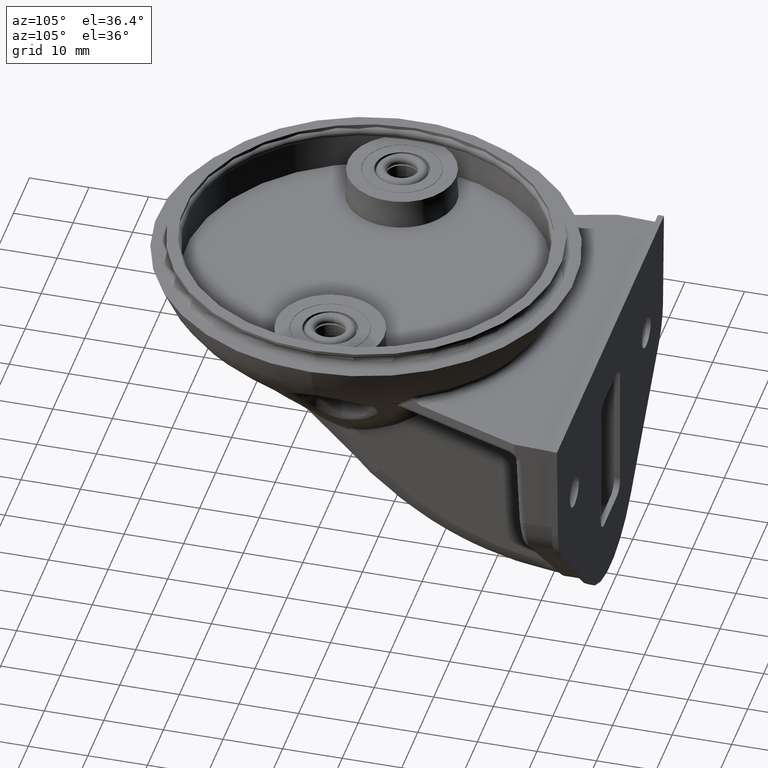
[diagram: clean part render]
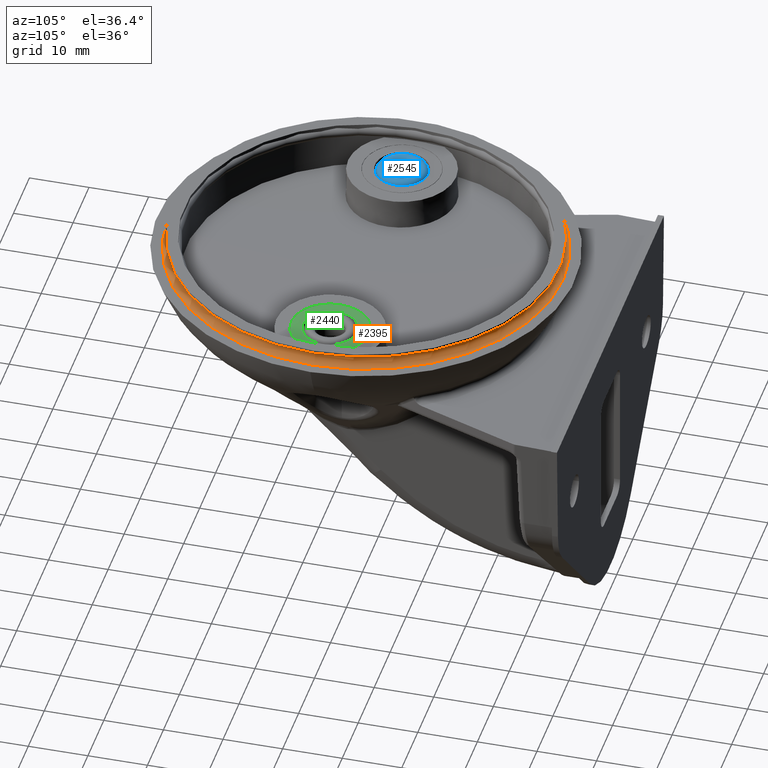
[diagram: same view with three faces highlighted in distinct colors, each labeled with its STEP entity id]
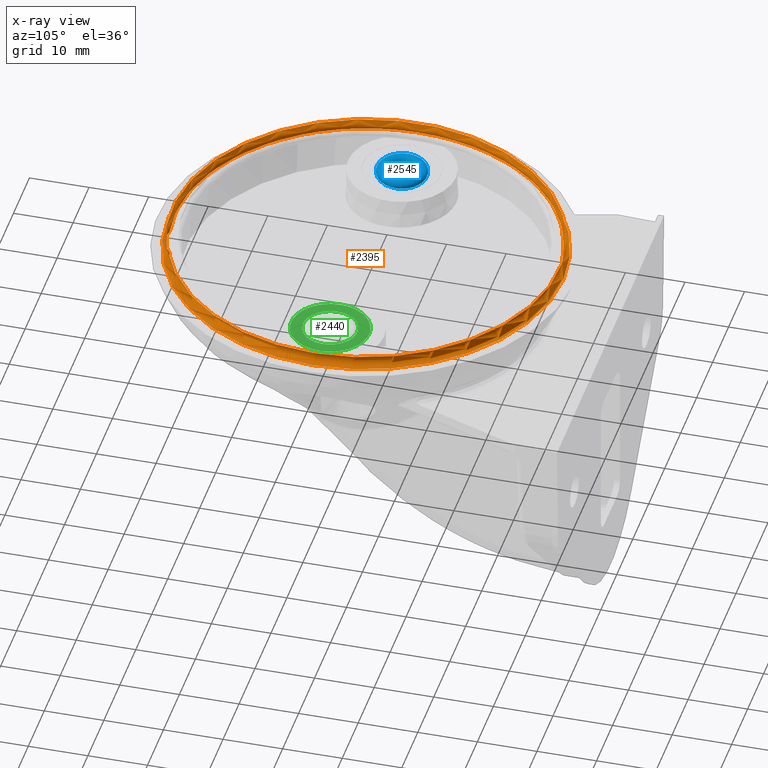
[diagram: x-ray of the same camera — body ghosted, the three highlighted faces saturated]
A machine part, auxiliary view with three faces highlighted in distinct colors.
The next image is the same camera in x-ray (body ghosted, the three faces saturated) — at least one of them is partly hidden behind the body in this view.
Their STEP definitions:

[orange] entity #2395 — the highlighted toroidal blend (fillet) surface has major radius 33.1 mm and minor (blend) radius 1.1 mm.
#353=CIRCLE('',#3006,32.5);
#354=CIRCLE('',#3008,33.1);
#683=EDGE_LOOP('',(#1081));
#684=EDGE_LOOP('',(#1082));
#1081=ORIENTED_EDGE('',*,*,#1823,.F.);
#1082=ORIENTED_EDGE('',*,*,#1824,.T.);
#1823=EDGE_CURVE('',#2785,#2785,#353,.T.);
#1824=EDGE_CURVE('',#2786,#2786,#354,.T.);
#2395=ADVANCED_FACE('',(#2590,#2591),#2548,.F.);
#2548=TOROIDAL_SURFACE('',#3009,33.1,1.10000000000001);
#2590=FACE_BOUND('',#683,.T.);
#2591=FACE_BOUND('',#684,.T.);
#2785=VERTEX_POINT('',#4659);
#2786=VERTEX_POINT('',#4662);
#3006=AXIS2_PLACEMENT_3D('',#4658,#3445,#3446);
#3008=AXIS2_PLACEMENT_3D('',#4661,#3449,#3450);
#3009=AXIS2_PLACEMENT_3D('',#4663,#3451,#3452);
#3445=DIRECTION('',(0.,0.,1.));
#3446=DIRECTION('',(1.,0.,0.));
#3449=DIRECTION('',(0.,0.,1.));
#3450=DIRECTION('',(1.,0.,0.));
#3451=DIRECTION('',(0.,0.,1.));
#3452=DIRECTION('',(1.,0.,0.));
#4658=CARTESIAN_POINT('',(-4.87211144386823E-005,-2.05277703803919,28.6062125120357));
#4659=CARTESIAN_POINT('',(32.4999512788855,-2.05277703803919,28.6062125120357));
#4661=CARTESIAN_POINT('',(-4.87211144386823E-005,-2.05277703803919,26.5842580663064));
#4662=CARTESIAN_POINT('',(33.0999512788856,-2.05277703803919,26.5842580663064));
#4663=CARTESIAN_POINT('',(-4.87211144386823E-005,-2.05277703803919,27.6842580663064));

[blue] entity #2545 — the highlighted toroidal blend (fillet) surface has major radius 3.375 mm and minor (blend) radius 0.875 mm.
#2545=ADVANCED_FACE('',(#2650),#2555,.T.);
#2555=TOROIDAL_SURFACE('',#3196,3.375,0.875);
#2650=FACE_BOUND('',#2653,.T.);
#2653=VERTEX_LOOP('',#2915);
#2915=VERTEX_POINT('',#8506);
#3196=AXIS2_PLACEMENT_3D('',#8507,#3881,#3882);
#3881=DIRECTION('',(0.,0.,-1.));
#3882=DIRECTION('',(-1.,0.,0.));
#8506=CARTESIAN_POINT('',(-26.7500487211144,-2.05277703803919,26.1092580663064));
#8507=CARTESIAN_POINT('',(-22.5000487211144,-2.05277703803919,26.1092580663064));

[green] entity #2440 — the highlighted planar face has unit normal (0, 0, 1).
#376=CIRCLE('',#3067,6.55);
#377=CIRCLE('',#3068,4.55);
#480=PLANE('',#3069);
#747=EDGE_LOOP('',(#1249));
#748=EDGE_LOOP('',(#1250));
#1249=ORIENTED_EDGE('',*,*,#1936,.T.);
#1250=ORIENTED_EDGE('',*,*,#1937,.F.);
#1936=EDGE_CURVE('',#2868,#2868,#376,.T.);
#1937=EDGE_CURVE('',#2869,#2869,#377,.T.);
#2440=ADVANCED_FACE('',(#2628,#2629),#480,.T.);
#2628=FACE_BOUND('',#747,.T.);
#2629=FACE_BOUND('',#748,.T.);
#2868=VERTEX_POINT('',#5815);
#2869=VERTEX_POINT('',#5817);
#3067=AXIS2_PLACEMENT_3D('',#5814,#3609,#3610);
#3068=AXIS2_PLACEMENT_3D('',#5816,#3611,#3612);
#3069=AXIS2_PLACEMENT_3D('',#5818,#3613,#3614);
#3609=DIRECTION('',(0.,0.,1.));
#3610=DIRECTION('',(-1.,0.,0.));
#3611=DIRECTION('',(0.,0.,1.));
#3612=DIRECTION('',(-1.,0.,0.));
#3613=DIRECTION('',(0.,0.,1.));
#3614=DIRECTION('',(-1.,0.,0.));
#5814=CARTESIAN_POINT('',(22.4999512788856,-2.05277703803919,26.5842580663064));
#5815=CARTESIAN_POINT('',(15.9499512788856,-2.05277703803919,26.5842580663064));
#5816=CARTESIAN_POINT('',(22.4999512788856,-2.05277703803919,26.5842580663064));
#5817=CARTESIAN_POINT('',(17.9499512788856,-2.05277703803919,26.5842580663064));
#5818=CARTESIAN_POINT('',(22.4999512788856,-2.05277703803919,26.5842580663064));